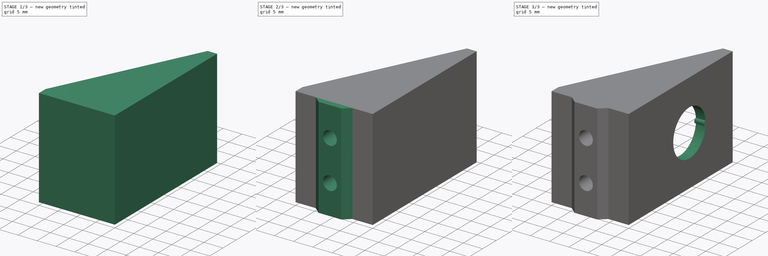
[diagram: build sequence overview — one tinted view per stage of 3, left to right]
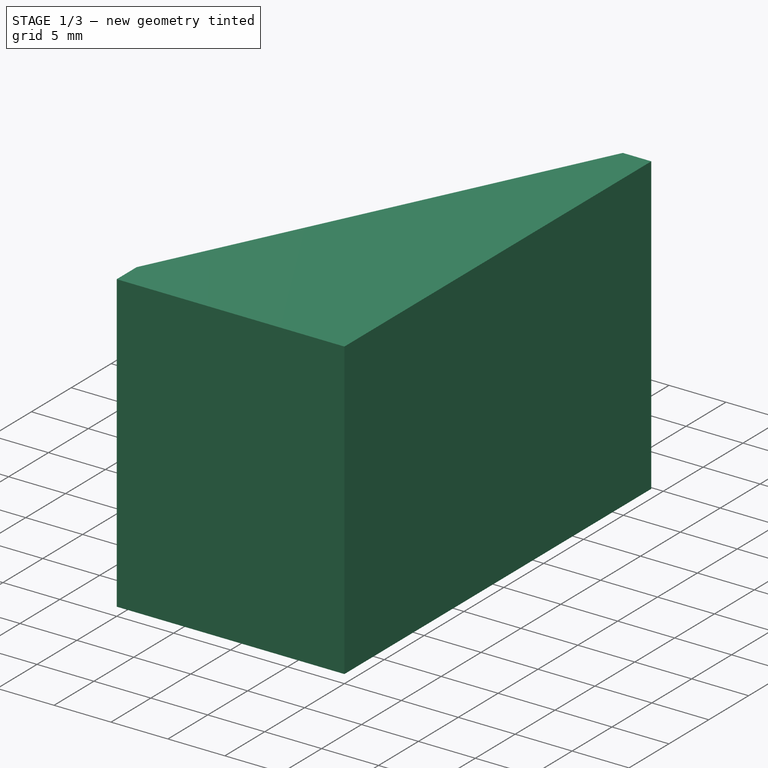
[diagram: stage 1 of 3 — iso view after this stage's code; geometry added in this stage tinted green]
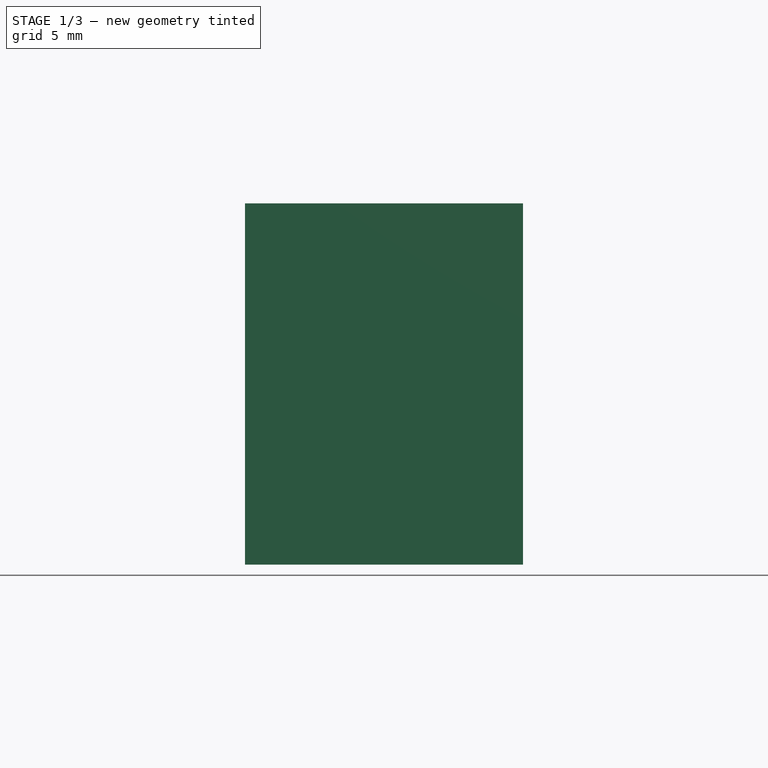
[diagram: stage 1 of 3 — front view after this stage's code; geometry added in this stage tinted green]
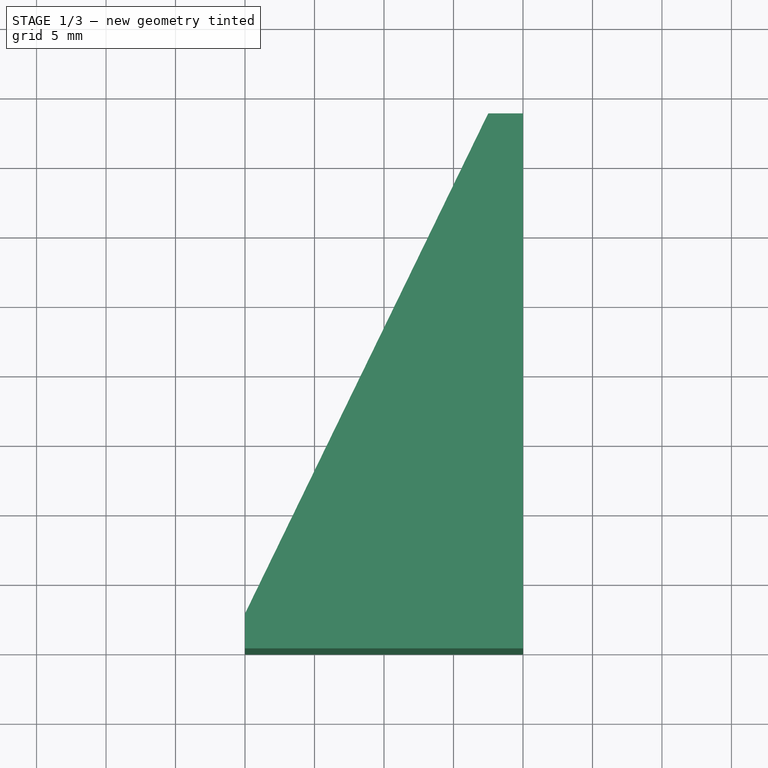
[diagram: stage 1 of 3 — top view after this stage's code; geometry added in this stage tinted green]
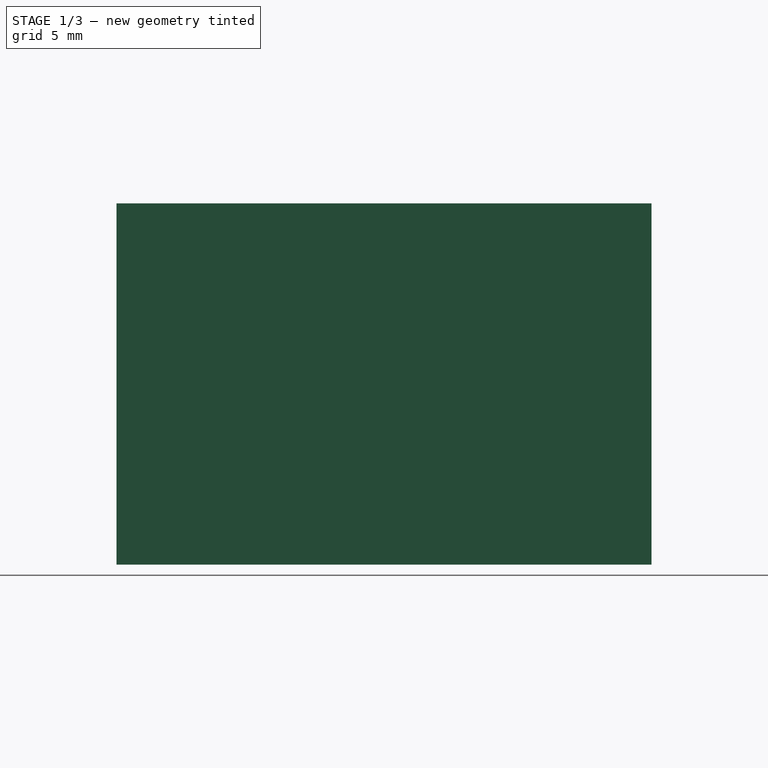
[diagram: stage 1 of 3 — right view after this stage's code; geometry added in this stage tinted green]
FCSTD DOCUMENT  (FreeCAD 0.21R33771 (Git))
Label: suporte-switch-v2
License: All rights reserved
LicenseURL: http://en.wikipedia.org/wiki/All_rights_reserved
objects: Sketcher::SketchObject×7, PartDesign::Pad×4, PartDesign::Pocket×3, PartDesign::Fillet×1, PartDesign::Body×1
note: 24 computed .brp shape members not serialized (recipe doc carries the construction recipe); baked Part::Feature solids carry a one-line shape summary decoded from their .brp

FEATURE [Sketcher::SketchObject] Sketch
  FullyConstrained = true
  MapMode = 5
  Support = -> [XY_Plane]
  sketch-geometry (6):
    g0: LineSegment StartX=0 StartY=0 StartZ=0 EndX=0 EndY=38.5 EndZ=0
    g1: LineSegment StartX=0 StartY=38.5 StartZ=0 EndX=-2.5 EndY=38.5 EndZ=0
    g2: LineSegment StartX=-2.5 StartY=38.5 StartZ=0 EndX=-2.5 EndY=2.5 EndZ=0
    g3: LineSegment StartX=-2.5 StartY=2.5 StartZ=0 EndX=-20 EndY=2.5 EndZ=0
    g4: LineSegment StartX=-20 StartY=2.5 StartZ=0 EndX=-20 EndY=0 EndZ=0
    g5: LineSegment StartX=-20 StartY=0 StartZ=0 EndX=0 EndY=0 EndZ=0
  constraints (17):
    c: Coincident(g-1,g0)
    c: Coincident(g0,g1)
    c: Coincident(g1,g2)
    c: Vertical(g2)
    c: Coincident(g2,g3)
    c: Horizontal(g3)
    c: Coincident(g3,g4)
    c: Coincident(g4,g5)
    c: Coincident(g5,g0)
    c: Horizontal(g5)
    c: Vertical(g0)
    c: Horizontal(g1)
    c: Vertical(g4)
    c: Equal(g4,g1)
    c: DistanceX(g5,g5) = 20
    c: DistanceY(g4,g4) = 2.5
    c: DistanceY(g2,g2) = 36
FEATURE [PartDesign::Pad] Pad
  Direction = (0,0,1)
  Length = 26
  Length2 = 10
  Profile = -> Sketch
  ReferenceAxis = -> Sketch [N_Axis]
  Type = 0
FEATURE [Sketcher::SketchObject] Sketch001
  ExternalGeometry = -> [Pad]
  FullyConstrained = true
  MapMode = 5
  Placement = pos=(0,0,0) rot=(1,0,0;3.14159rad)
  Support = -> [Pad]
  sketch-geometry (3):
    g0: LineSegment StartX=-20 StartY=-2.5 StartZ=0 EndX=-2.5 EndY=-38.5 EndZ=0
    g1: LineSegment StartX=-20 StartY=-2.5 StartZ=0 EndX=-2.5 EndY=-2.5 EndZ=0
    g2: LineSegment StartX=-2.5 StartY=-2.5 StartZ=0 EndX=-2.5 EndY=-38.5 EndZ=0
  constraints (6):
    c: Coincident(g0,g-3)
    c: Coincident(g0,g-4)
    c: Coincident(g1,g0)
    c: Coincident(g2,g1)
    c: Coincident(g2,g0)
    c: Coincident(g1,g-4)
FEATURE [PartDesign::Pad] Pad001
  BaseFeature = -> Pad
  Direction = (0,0,-1)
  Length = 10
  Length2 = 10
  Profile = -> Sketch001
  ReferenceAxis = -> Sketch001 [N_Axis]
  Type = 3
  UpToFace = -> Pad [Face8]
FEATURE [Sketcher::SketchObject] Sketch002
  ExternalGeometry = -> [Pad001]
  FullyConstrained = true
  MapMode = 5
  Placement = pos=(-20,0,0) rot=(0.57735,-0.57735,-0.57735;2.0944rad)
  Support = -> [Pad001]
  sketch-geometry (5):
    g0: LineSegment StartX=-38.5 StartY=23 StartZ=0 EndX=-2.5 EndY=23 EndZ=0
    g1: LineSegment StartX=-2.5 StartY=23 StartZ=0 EndX=-2.5 EndY=3 EndZ=0
    g2: LineSegment StartX=-2.5 StartY=3 StartZ=0 EndX=-38.5 EndY=3 EndZ=0
    g3: LineSegment StartX=-38.5 StartY=3 StartZ=0 EndX=-38.5 EndY=23 EndZ=0
    g4: LineSegment StartX=-38.5 StartY=13 StartZ=0 EndX=-2.5 EndY=13 EndZ=0
  constraints (14):
    c: Coincident(g0,g1)
    c: Coincident(g1,g2)
    c: Coincident(g2,g3)
    c: Coincident(g3,g0)
    c: Horizontal(g0)
    c: Horizontal(g2)
    c: Vertical(g1)
    c: PointOnObject(g0,g-4)
    c: PointOnObject(g1,g-3)
    c: DistanceY(g3,g3) = 20
    c: Symmetric(g-3,g-3,g4)
    c: Symmetric(g2,g0,g4)
    c: PointOnObject(g4,g3)
    c: PointOnObject(g4,g1)
FEATURE [PartDesign::Pocket] Pocket
  BaseFeature = -> Pad001
  Direction = (1,0,0)
  Length = 17.5
  Length2 = 5
  Profile = -> Sketch002
  ReferenceAxis = -> Sketch002 [N_Axis]
  Type = 0
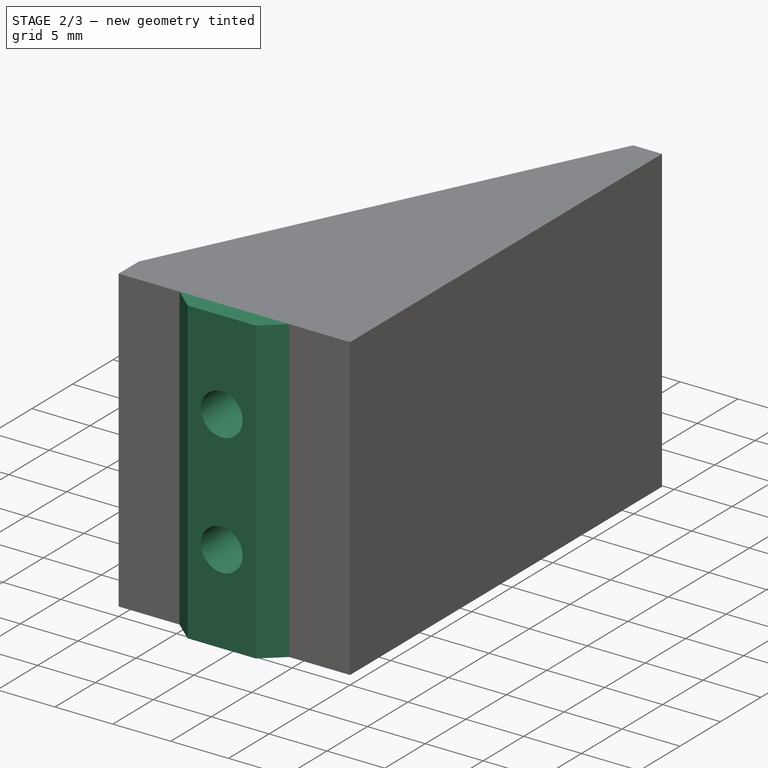
[diagram: stage 2 of 3 — iso view after this stage's code; geometry added in this stage tinted green]
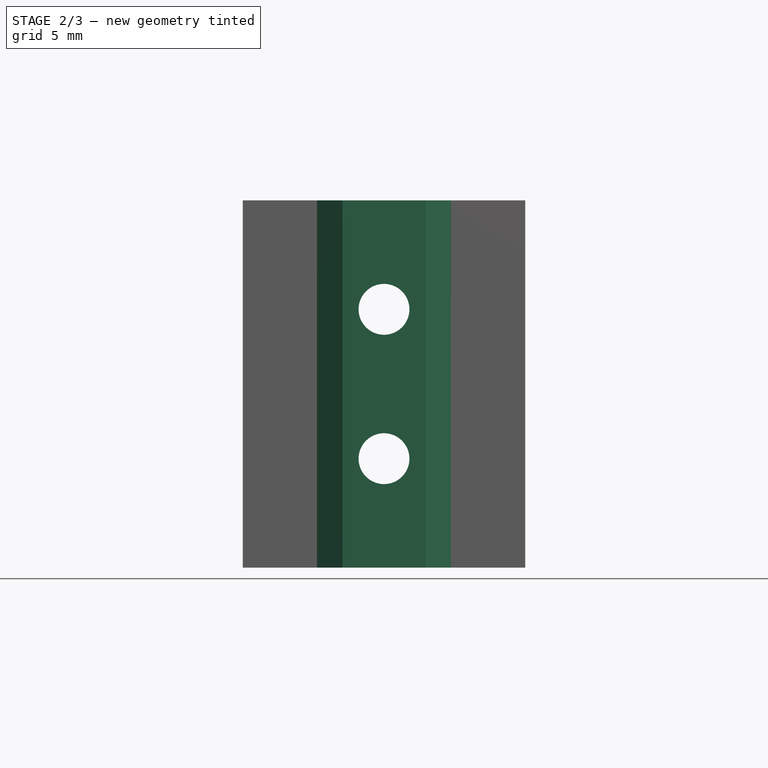
[diagram: stage 2 of 3 — front view after this stage's code; geometry added in this stage tinted green]
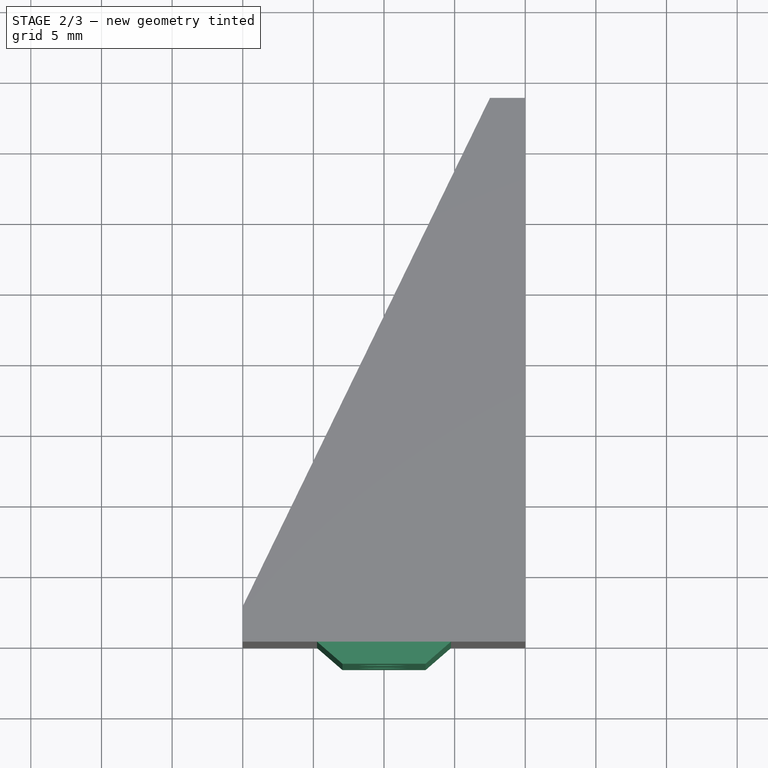
[diagram: stage 2 of 3 — top view after this stage's code; geometry added in this stage tinted green]
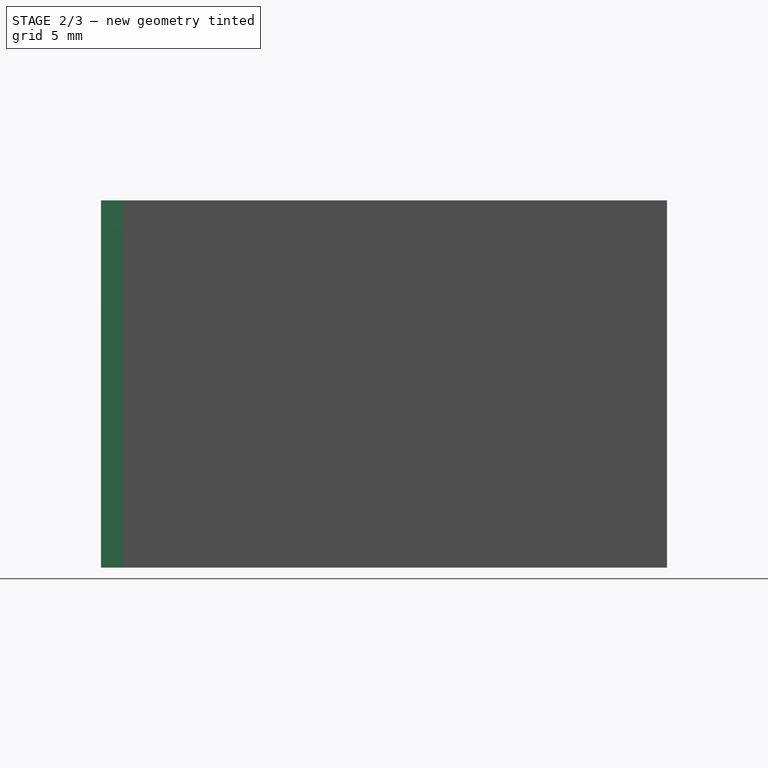
[diagram: stage 2 of 3 — right view after this stage's code; geometry added in this stage tinted green]
FEATURE [Sketcher::SketchObject] Sketch003
  ExternalGeometry = -> [Pocket]
  FullyConstrained = false
  MapMode = 5
  Placement = pos=(0,0,0) rot=(1,0,0;3.14159rad)
  Support = -> [Pocket]
  sketch-geometry (5):
    g0: LineSegment StartX=-10 StartY=6.26607 StartZ=0 EndX=-10 EndY=-9.43828 EndZ=0
    g1: LineSegment StartX=-14.74 StartY=0 StartZ=0 EndX=-5.26 EndY=0 EndZ=0
    g2: LineSegment StartX=-5.26 StartY=0 StartZ=0 EndX=-7.06 EndY=1.56 EndZ=0
    g3: LineSegment StartX=-7.06 StartY=1.56 StartZ=0 EndX=-12.94 EndY=1.56 EndZ=0
    g4: LineSegment StartX=-12.94 StartY=1.56 StartZ=0 EndX=-14.74 EndY=2e-16 EndZ=0
  constraints (11):
    c: Symmetric(g-3,g-3,g0)
    c: Coincident(g1,g2)
    c: Coincident(g2,g3)
    c: Coincident(g3,g4)
    c: Coincident(g4,g1)
    c: Symmetric(g2,g3,g0)
    c: Symmetric(g1,g1,g0)
    c: PointOnObject(g1,g-3)
    c: DistanceX(g3,g3) = 5.88
    c: DistanceX(g1,g1) = 9.48
    c: DistanceY(g1,g3) = 1.56
FEATURE [PartDesign::Pad] Pad002
  BaseFeature = -> Pocket
  Direction = (0,0,-1)
  Length = 10
  Length2 = 10
  Profile = -> Sketch003
  ReferenceAxis = -> Sketch003 [N_Axis]
  Type = 3
  UpToFace = -> Pocket [Face5]
FEATURE [Sketcher::SketchObject] Sketch004
  ExternalGeometry = -> [Pad002]
  FullyConstrained = true
  MapMode = 5
  Placement = pos=(0,-1.56,0) rot=(1,0,0;1.5708rad)
  Support = -> [Pad002]
  sketch-geometry (5):
    g0: LineSegment StartX=-20 StartY=13 StartZ=0 EndX=0 EndY=13 EndZ=0
    g1: LineSegment StartX=-10 StartY=18.286 StartZ=0 EndX=-10 EndY=7.714 EndZ=0
    g2: Circle CenterX=-10 CenterY=18.286 CenterZ=0 NormalX=0 NormalY=0 NormalZ=1 AngleXU=0 Radius=1.8
    g3: Circle CenterX=-10 CenterY=7.714 CenterZ=0 NormalX=0 NormalY=0 NormalZ=1 AngleXU=0 Radius=1.8
    g4: Circle CenterX=-10 CenterY=18.286 CenterZ=0 NormalX=0 NormalY=0 NormalZ=1 AngleXU=0 Radius=3
  constraints (12):
    c: Symmetric(g-3,g-3,g0)
    c: PointOnObject(g0,g-3)
    c: PointOnObject(g0,g-4)
    c: Symmetric(g0,g0,g1)
    c: Coincident(g2,g1)
    c: Coincident(g3,g1)
    c: Equal(g2,g3)
    c: Diameter(g2) = 3.6
    c: Coincident(g4,g2)
    c: Diameter(g4) = 6
    c: DistanceY(g1,g1) = 10.572
    c: Symmetric(g2,g3,g0)
FEATURE [PartDesign::Pocket] Pocket001
  BaseFeature = -> Pad002
  Direction = (0,1,-2e-16)
  Length = 5
  Length2 = 5
  Profile = -> Sketch004
  ReferenceAxis = -> Sketch004 [N_Axis]
  Type = 1
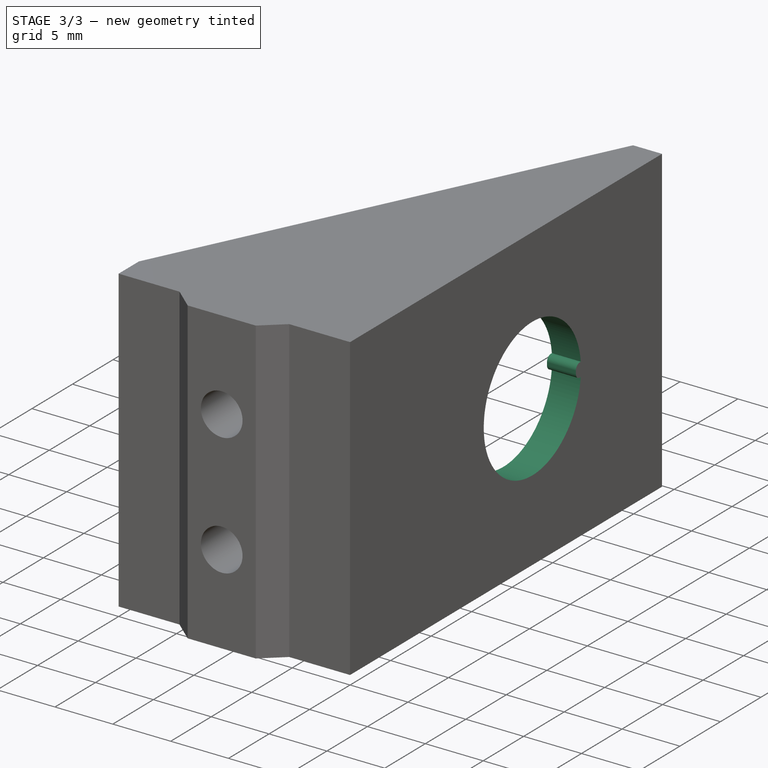
[diagram: stage 3 of 3 — iso view after this stage's code; geometry added in this stage tinted green]
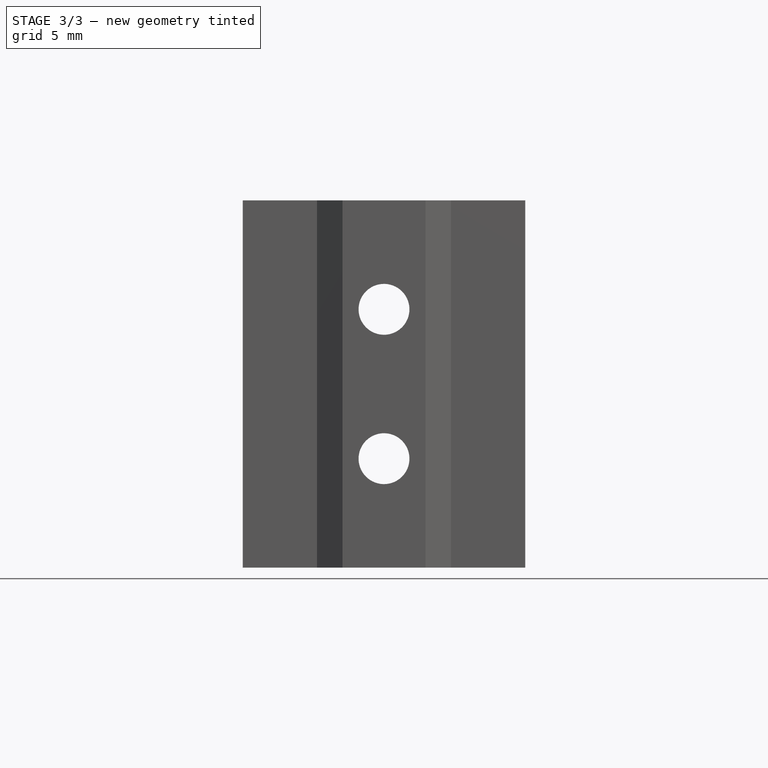
[diagram: stage 3 of 3 — front view after this stage's code; geometry added in this stage tinted green]
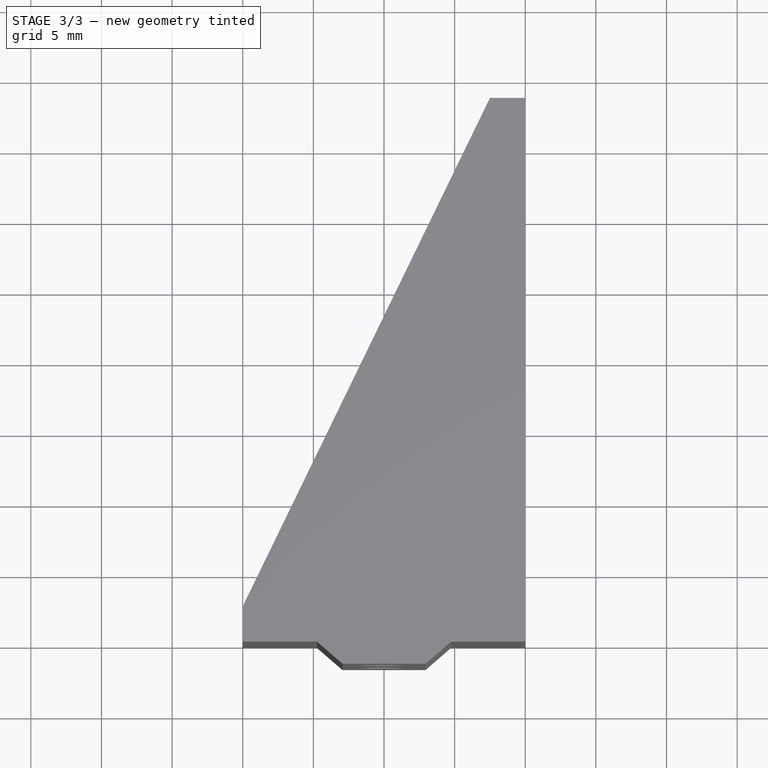
[diagram: stage 3 of 3 — top view after this stage's code; geometry added in this stage tinted green]
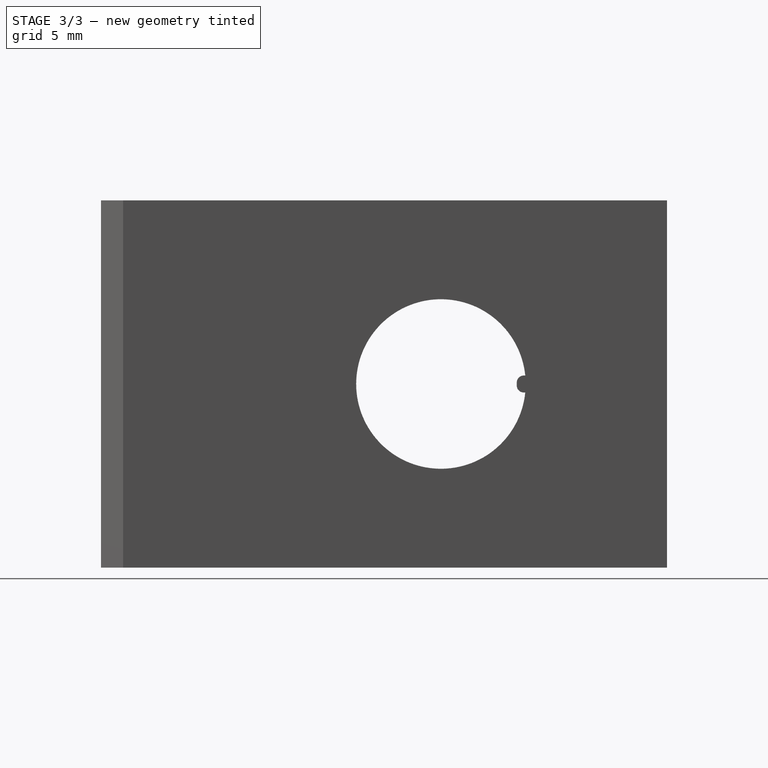
[diagram: stage 3 of 3 — right view after this stage's code; geometry added in this stage tinted green]
FEATURE [Sketcher::SketchObject] Sketch005
  ExternalGeometry = -> [Pocket001]
  FullyConstrained = true
  MapMode = 5
  Placement = pos=(-2.5,0,0) rot=(0.57735,-0.57735,-0.57735;2.0944rad)
  Support = -> [Pocket001]
  sketch-geometry (7):
    g0: LineSegment StartX=-38.5 StartY=22.5 StartZ=0 EndX=-6.5 EndY=22.5 EndZ=0
    g1: LineSegment StartX=-6.5 StartY=22.5 StartZ=0 EndX=-6.5 EndY=3.5 EndZ=0
    g2: LineSegment StartX=-6.5 StartY=3.5 StartZ=0 EndX=-38.5 EndY=3.5 EndZ=0
    g3: LineSegment StartX=-38.5 StartY=3.5 StartZ=0 EndX=-38.5 EndY=22.5 EndZ=0
    g4: LineSegment StartX=-38.5 StartY=13 StartZ=0 EndX=-6.5 EndY=13 EndZ=0
    g5: LineSegment StartX=-22.5 StartY=22.5 StartZ=0 EndX=-22.5 EndY=3.5 EndZ=0
    g6: Circle CenterX=-22.5 CenterY=13 CenterZ=0 NormalX=0 NormalY=0 NormalZ=1 AngleXU=0 Radius=6
  constraints (20):
    c: Coincident(g0,g1)
    c: Coincident(g1,g2)
    c: Coincident(g2,g3)
    c: Coincident(g3,g0)
    c: Horizontal(g0)
    c: Horizontal(g2)
    c: Vertical(g1)
    c: DistanceY(g1,g1) = 19
    c: DistanceX(g2,g2) = 32
    c: Symmetric(g-3,g-3,g4)
    c: Symmetric(g2,g0,g4)
    c: PointOnObject(g4,g3)
    c: PointOnObject(g2,g-3)
    c: PointOnObject(g4,g1)
    c: Symmetric(g5,g5,g4)
    c: PointOnObject(g5,g0)
    c: Symmetric(g4,g4,g5)
    c: PointOnObject(g6,g5)
    c: PointOnObject(g6,g4)
    c: Diameter(g6) = 12
FEATURE [PartDesign::Pocket] Pocket002
  BaseFeature = -> Pocket001
  Direction = (1,0,0)
  Length = 5
  Length2 = 5
  Profile = -> Sketch005
  ReferenceAxis = -> Sketch005 [N_Axis]
  Type = 1
FEATURE [Sketcher::SketchObject] Sketch006
  ExternalGeometry = -> [Pocket002]
  FullyConstrained = true
  MapMode = 5
  Placement = pos=(0,0,0) rot=(0.57735,0.57735,0.57735;2.0944rad)
  Support = -> [Pocket002]
  sketch-geometry (6):
    g0: LineSegment StartX=22.5 StartY=13 StartZ=0 EndX=29.8699 EndY=13 EndZ=0
    g1: LineSegment StartX=29.8699 StartY=13.6 StartZ=0 EndX=27.8699 EndY=13.6 EndZ=0
    g2: LineSegment StartX=27.8699 StartY=13.6 StartZ=0 EndX=27.8699 EndY=12.4 EndZ=0
    g3: LineSegment StartX=27.8699 StartY=12.4 StartZ=0 EndX=29.8699 EndY=12.4 EndZ=0
    g4: LineSegment StartX=29.8699 StartY=12.4 StartZ=0 EndX=29.8699 EndY=13.6 EndZ=0
    g5: GeomPoint X=28.4699 Y=13.6 Z=0
  constraints (16):
    c: Coincident(g0,g-3)
    c: Horizontal(g0)
    c: Coincident(g1,g2)
    c: Coincident(g2,g3)
    c: Coincident(g3,g4)
    c: Coincident(g4,g1)
    c: Horizontal(g1)
    c: Horizontal(g3)
    c: Vertical(g4)
    c: Symmetric(g1,g2,g0)
    c: PointOnObject(g0,g4)
    c: DistanceY(g4,g4) = 1.2
    c: PointOnObject(g5,g-3)
    c: PointOnObject(g5,g1)
    c: DistanceX(g1,g5) = 0.6
    c: DistanceX(g3,g3) = 2
FEATURE [PartDesign::Pad] Pad003
  BaseFeature = -> Pocket002
  Direction = (1,0,0)
  Length = 10
  Length2 = 10
  Profile = -> Sketch006
  ReferenceAxis = -> Sketch006 [N_Axis]
  Type = 3
  UpToFace = -> Pocket002 [Face15]
FEATURE [PartDesign::Fillet] Fillet
  Base = -> Pad003 [Edge62,Edge57]
  BaseFeature = -> Pad003
  Radius = 0.49
  SupportTransform = false
  UseAllEdges = false
FEATURE [PartDesign::Body] Body
  Group = -> [Sketch,Pad,Sketch001,Pad001,Sketch002,Pocket,Sketch003,Pad002,Sketch004,Pocket001,Sketch005,Pocket002,Sketch006,Pad003,Fillet]
  Origin = -> Origin
  Tip = -> Fillet
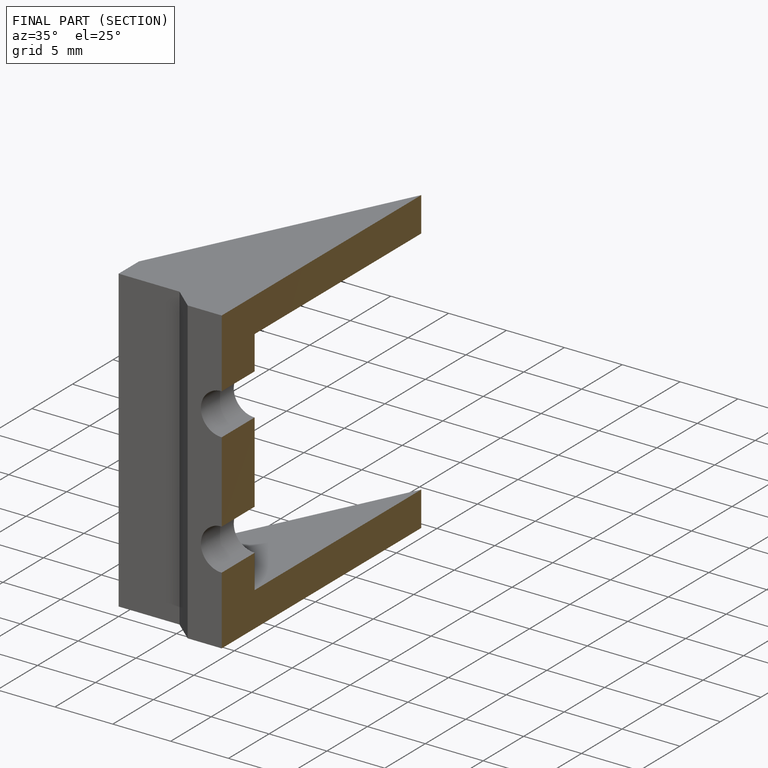
[diagram: finished part — half-section view (interior)]
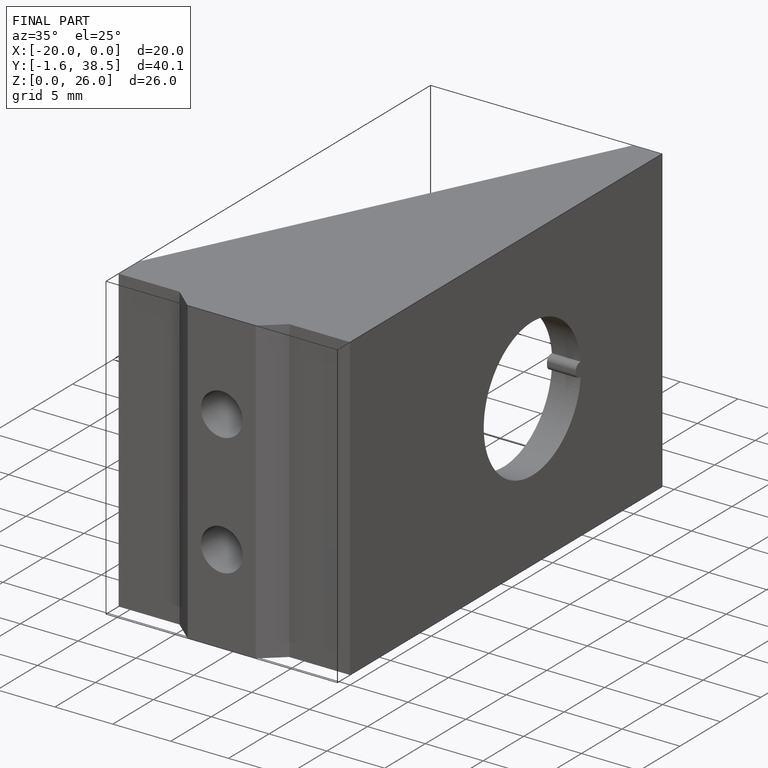
[diagram: finished part — iso view with bounding-box wireframe]
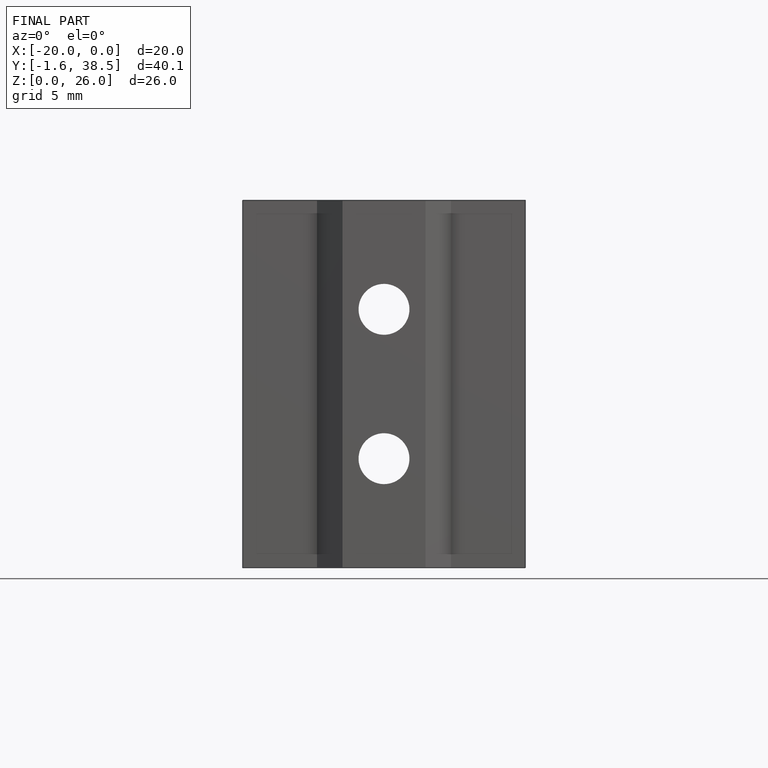
[diagram: finished part — front view with bounding-box wireframe]
